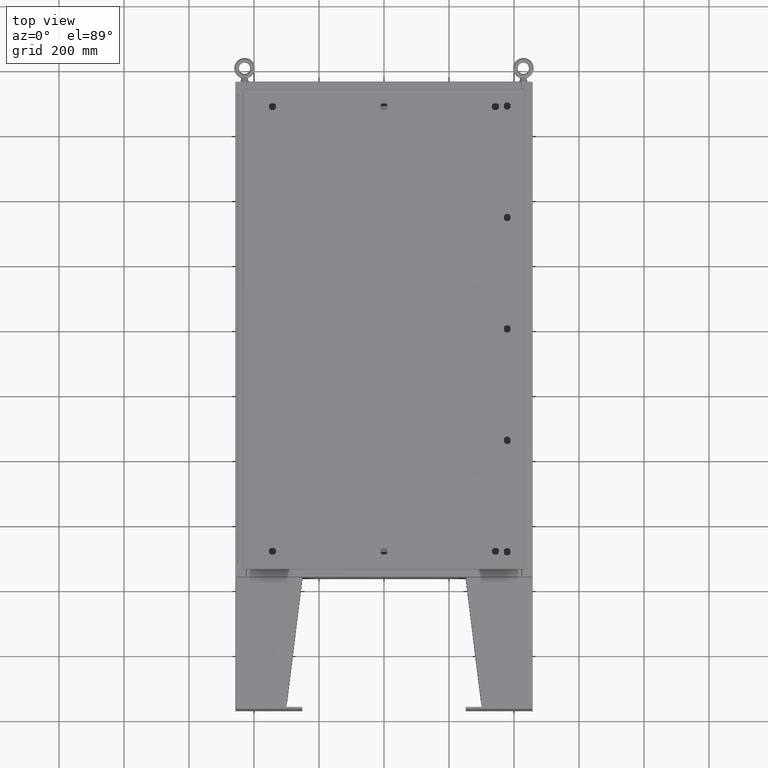
[diagram: clean part render]
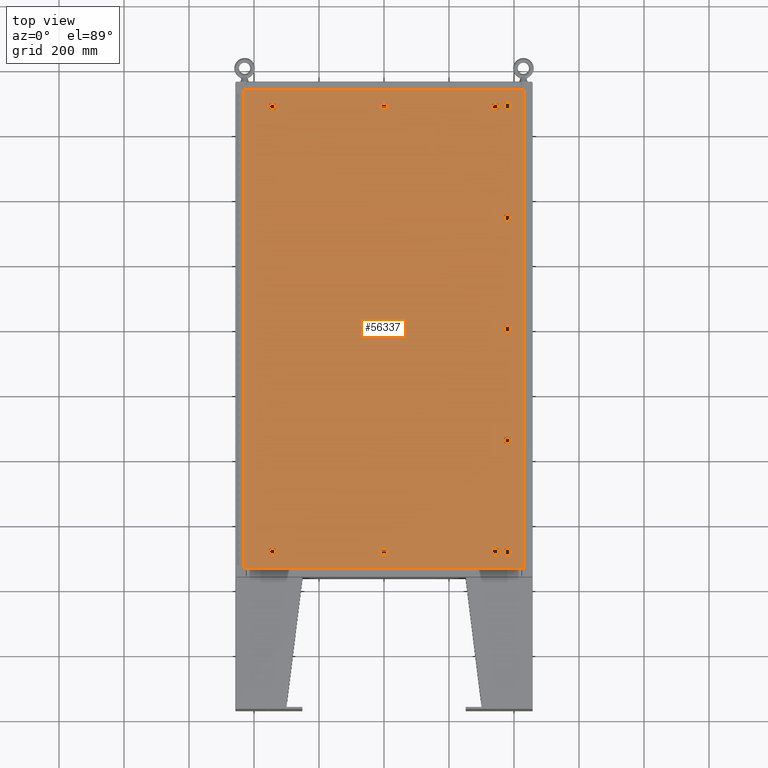
[diagram: same view with one face highlighted and labeled with its STEP entity id]
A machine part, top view. The second image highlights one B-rep face of the part: STEP entity #56337.
In plain terms, the highlighted planar face has unit normal (0, 0, -1).
Its self-contained STEP definition (entity closure, byte-faithful):
#100 = CIRCLE ( 'NONE', #61415, 0.4424999999999983400 ) ;
#177 = LINE ( 'NONE', #4350, #61389 ) ;
#438 = VERTEX_POINT ( 'NONE', #36956 ) ;
#645 = VECTOR ( 'NONE', #4768, 39.37007874015748100 ) ;
#780 = ORIENTED_EDGE ( 'NONE', *, *, #30802, .F. ) ;
#871 = DIRECTION ( 'NONE',  ( 0.0000000000000000000, -1.000000000000000000, 0.0000000000000000000 ) ) ;
#1169 = ORIENTED_EDGE ( 'NONE', *, *, #55194, .F. ) ;
#1293 = CARTESIAN_POINT ( 'NONE',  ( -13.69945237526786700, -27.33930000000000500, 0.0000000000000000000 ) ) ;
#1322 = EDGE_CURVE ( 'NONE', #27923, #15165, #3598, .T. ) ;
#1470 = EDGE_CURVE ( 'NONE', #8655, #46688, #53153, .T. ) ;
#1485 = FACE_BOUND ( 'NONE', #56544, .T. ) ;
#2029 = CARTESIAN_POINT ( 'NONE',  ( -0.1994523752678657400, 27.33929999999999100, 0.0000000000000000000 ) ) ;
#2033 = VECTOR ( 'NONE', #18959, 39.37007874015748100 ) ;
#2074 = DIRECTION ( 'NONE',  ( 1.000000000000000000, 1.095739467627832000E-014, 7.785697190085955000E-029 ) ) ;
#2168 = CARTESIAN_POINT ( 'NONE',  ( -0.1994523752678689600, 26.54929999999999900, 0.0000000000000000000 ) ) ;
#2210 = EDGE_CURVE ( 'NONE', #20897, #24893, #42932, .T. ) ;
#2417 = VERTEX_POINT ( 'NONE', #50197 ) ;
#2532 = CARTESIAN_POINT ( 'NONE',  ( -13.69945237526786900, -26.54930000000001300, -2.493734682567286400E-013 ) ) ;
#2623 = CARTESIAN_POINT ( 'NONE',  ( 14.92830000000001400, 27.00000000000001400, 0.0000000000000000000 ) ) ;
#2781 = CARTESIAN_POINT ( 'NONE',  ( 13.30054762473209500, -27.33929999999999400, -1.620127811158077400E-013 ) ) ;
#2799 = CIRCLE ( 'NONE', #58041, 0.4424999999999969000 ) ;
#2832 = DIRECTION ( 'NONE',  ( 0.0000000000000000000, 0.0000000000000000000, 1.000000000000000000 ) ) ;
#2834 = ORIENTED_EDGE ( 'NONE', *, *, #25305, .F. ) ;
#2923 = VERTEX_POINT ( 'NONE', #14451 ) ;
#2996 = FACE_BOUND ( 'NONE', #57729, .T. ) ;
#3210 = ORIENTED_EDGE ( 'NONE', *, *, #61022, .F. ) ;
#3400 = ORIENTED_EDGE ( 'NONE', *, *, #5374, .F. ) ;
#3418 = VECTOR ( 'NONE', #23327, 39.37007874015748100 ) ;
#3460 = ORIENTED_EDGE ( 'NONE', *, *, #53196, .F. ) ;
#3489 = ORIENTED_EDGE ( 'NONE', *, *, #7373, .F. ) ;
#3598 = CIRCLE ( 'NONE', #17120, 0.4424999999999961700 ) ;
#3670 = CARTESIAN_POINT ( 'NONE',  ( 16.99030000000000500, 29.00630000000000300, 1.946441695485787500E-015 ) ) ;
#3677 = DIRECTION ( 'NONE',  ( 0.0000000000000000000, 0.0000000000000000000, 1.000000000000000000 ) ) ;
#3820 = DIRECTION ( 'NONE',  ( -1.095739467627836100E-014, -1.000000000000000000, 0.0000000000000000000 ) ) ;
#4019 = CARTESIAN_POINT ( 'NONE',  ( 15.32330000000001000, 13.69945237526790100, 0.0000000000000000000 ) ) ;
#4088 = VERTEX_POINT ( 'NONE', #42199 ) ;
#4350 = CARTESIAN_POINT ( 'NONE',  ( 14.53330000000002700, -27.19945237526790300, -1.899327607900008200E-013 ) ) ;
#4382 = EDGE_CURVE ( 'NONE', #15165, #47140, #31452, .T. ) ;
#4534 = VECTOR ( 'NONE', #18728, 39.37007874015748100 ) ;
#4548 = CARTESIAN_POINT ( 'NONE',  ( 13.69945237526786900, 27.33929999999999100, 0.0000000000000000000 ) ) ;
#4556 = DIRECTION ( 'NONE',  ( -5.478697338139235000E-015, 1.000000000000000000, -0.0000000000000000000 ) ) ;
#4636 = EDGE_LOOP ( 'NONE', ( #3210, #32504, #5522, #35628 ) ) ;
#4768 = DIRECTION ( 'NONE',  ( -1.000000000000000000, -0.0000000000000000000, -6.982962677686265900E-015 ) ) ;
#5200 = CARTESIAN_POINT ( 'NONE',  ( -13.30054762473210200, -26.54930000000001300, -2.493734682567286900E-013 ) ) ;
#5361 = CARTESIAN_POINT ( 'NONE',  ( 14.92830000000001400, 27.00000000000001400, 0.0000000000000000000 ) ) ;
#5374 = EDGE_CURVE ( 'NONE', #26541, #57162, #50456, .T. ) ;
#5522 = ORIENTED_EDGE ( 'NONE', *, *, #41123, .F. ) ;
#5757 = EDGE_LOOP ( 'NONE', ( #23945, #33478, #7569, #19877 ) ) ;
#6111 = CARTESIAN_POINT ( 'NONE',  ( 13.30054762473209500, 27.33929999999998700, -9.287722765629296100E-014 ) ) ;
#6284 = EDGE_CURVE ( 'NONE', #32038, #34408, #6603, .T. ) ;
#6287 = DIRECTION ( 'NONE',  ( 0.0000000000000000000, 0.0000000000000000000, 1.000000000000000000 ) ) ;
#6603 = CIRCLE ( 'NONE', #23785, 0.4424999999999983400 ) ;
#6738 = DIRECTION ( 'NONE',  ( -6.982962677686266700E-015, -6.982962677686266700E-015, 1.000000000000000000 ) ) ;
#6745 = VECTOR ( 'NONE', #61131, 39.37007874015748100 ) ;
#6907 = EDGE_CURVE ( 'NONE', #55933, #2923, #14789, .T. ) ;
#6934 = VECTOR ( 'NONE', #28177, 39.37007874015748100 ) ;
#6949 = CARTESIAN_POINT ( 'NONE',  ( 13.49999999999998600, -26.94430000000000200, -1.578617423656501800E-013 ) ) ;
#6965 = DIRECTION ( 'NONE',  ( -0.0000000000000000000, -6.982962677686266700E-015, 1.000000000000000000 ) ) ;
#7297 = CARTESIAN_POINT ( 'NONE',  ( 13.30054762473210400, -26.54930000000000600, -1.564962406004356200E-013 ) ) ;
#7354 = ORIENTED_EDGE ( 'NONE', *, *, #33715, .F. ) ;
#7373 = EDGE_CURVE ( 'NONE', #27929, #54880, #41875, .T. ) ;
#7398 = CIRCLE ( 'NONE', #32411, 0.4424999999999983400 ) ;
#7510 = VERTEX_POINT ( 'NONE', #2029 ) ;
#7569 = ORIENTED_EDGE ( 'NONE', *, *, #39891, .T. ) ;
#7900 = EDGE_CURVE ( 'NONE', #57162, #31856, #16173, .T. ) ;
#7998 = VECTOR ( 'NONE', #59739, 39.37007874015748100 ) ;
#8280 = ORIENTED_EDGE ( 'NONE', *, *, #44750, .F. ) ;
#8655 = VERTEX_POINT ( 'NONE', #55554 ) ;
#8670 = CIRCLE ( 'NONE', #24077, 0.4424999999999983400 ) ;
#8732 = CIRCLE ( 'NONE', #13384, 0.4424999999999983400 ) ;
#8816 = AXIS2_PLACEMENT_3D ( 'NONE', #20107, #58757, #54064 ) ;
#8835 = ORIENTED_EDGE ( 'NONE', *, *, #14436, .F. ) ;
#8989 = ORIENTED_EDGE ( 'NONE', *, *, #43302, .F. ) ;
#9700 = EDGE_CURVE ( 'NONE', #53467, #48352, #33662, .T. ) ;
#9976 = CARTESIAN_POINT ( 'NONE',  ( -13.30054762473210200, -26.54930000000001300, -2.493734682567286900E-013 ) ) ;
#10014 = ORIENTED_EDGE ( 'NONE', *, *, #21000, .F. ) ;
#10137 = DIRECTION ( 'NONE',  ( 1.000000000000000000, 0.0000000000000000000, 0.0000000000000000000 ) ) ;
#10307 = AXIS2_PLACEMENT_3D ( 'NONE', #6949, #6738, #10333 ) ;
#10333 = DIRECTION ( 'NONE',  ( 1.000000000000000000, 0.0000000000000000000, 6.982962677686270700E-015 ) ) ;
#10358 = DIRECTION ( 'NONE',  ( -0.0000000000000000000, -6.982962677686266700E-015, 1.000000000000000000 ) ) ;
#10453 = CARTESIAN_POINT ( 'NONE',  ( 0.1994523752679054600, 27.33929999999998700, 0.0000000000000000000 ) ) ;
#10631 = CARTESIAN_POINT ( 'NONE',  ( 13.30054762473209500, -27.33929999999999400, -1.620127811158077400E-013 ) ) ;
#11287 = ORIENTED_EDGE ( 'NONE', *, *, #2210, .F. ) ;
#11372 = ORIENTED_EDGE ( 'NONE', *, *, #27663, .F. ) ;
#11411 = AXIS2_PLACEMENT_3D ( 'NONE', #20757, #2832, #40339 ) ;
#11419 = DIRECTION ( 'NONE',  ( 6.982962677686266700E-015, -0.0000000000000000000, 1.000000000000000000 ) ) ;
#11496 = DIRECTION ( 'NONE',  ( 5.478697338139280000E-015, 1.000000000000000000, 6.982962677686382700E-015 ) ) ;
#11519 = CARTESIAN_POINT ( 'NONE',  ( 15.32330000000001600, -13.30054762473213300, -9.287722765629316300E-014 ) ) ;
#11555 = CARTESIAN_POINT ( 'NONE',  ( -16.99029999999999800, -29.00630000000000300, 1.946441695485787500E-015 ) ) ;
#11563 = CARTESIAN_POINT ( 'NONE',  ( 14.92830000000002000, -27.00000000000001400, -1.885399922975292500E-013 ) ) ;
#11954 = VECTOR ( 'NONE', #60035, 39.37007874015748100 ) ;
#11993 = VERTEX_POINT ( 'NONE', #51020 ) ;
#12222 = CIRCLE ( 'NONE', #21260, 0.4424999999999961700 ) ;
#12238 = CARTESIAN_POINT ( 'NONE',  ( 14.53330000000001800, -0.1994523752678671000, 0.0000000000000000000 ) ) ;
#12311 = LINE ( 'NONE', #9976, #62345 ) ;
#12389 = EDGE_CURVE ( 'NONE', #52976, #40144, #177, .T. ) ;
#12462 = DIRECTION ( 'NONE',  ( -6.982962677686266700E-015, -6.982962677686266700E-015, 1.000000000000000000 ) ) ;
#12680 = VECTOR ( 'NONE', #2074, 39.37007874015748100 ) ;
#12822 = CARTESIAN_POINT ( 'NONE',  ( 14.53330000000002400, 13.69945237526790600, 0.0000000000000000000 ) ) ;
#12837 = CIRCLE ( 'NONE', #54951, 0.4424999999999983400 ) ;
#12853 = EDGE_CURVE ( 'NONE', #37382, #26541, #20754, .T. ) ;
#12930 = VECTOR ( 'NONE', #44375, 39.37007874015748100 ) ;
#13006 = EDGE_LOOP ( 'NONE', ( #41716, #43517, #18574, #8989, #8280 ) ) ;
#13076 = CARTESIAN_POINT ( 'NONE',  ( -13.30054762473209400, 27.33929999999998700, 0.0000000000000000000 ) ) ;
#13127 = EDGE_CURVE ( 'NONE', #46688, #39724, #47285, .T. ) ;
#13156 = CIRCLE ( 'NONE', #14222, 0.4424999999999972800 ) ;
#13235 = CARTESIAN_POINT ( 'NONE',  ( -13.05749999999998900, -26.94430000000000500, -2.521317385144146900E-013 ) ) ;
#13384 = AXIS2_PLACEMENT_3D ( 'NONE', #44260, #15367, #49195 ) ;
#13406 = LINE ( 'NONE', #62674, #645 ) ;
#14222 = AXIS2_PLACEMENT_3D ( 'NONE', #28589, #62567, #33502 ) ;
#14241 = FACE_BOUND ( 'NONE', #56264, .T. ) ;
#14436 = EDGE_CURVE ( 'NONE', #31856, #49313, #53194, .T. ) ;
#14451 = CARTESIAN_POINT ( 'NONE',  ( 0.1994523752678995500, 26.54929999999999900, 0.0000000000000000000 ) ) ;
#14789 = LINE ( 'NONE', #54120, #2033 ) ;
#15091 = DIRECTION ( 'NONE',  ( -0.0000000000000000000, -6.982962677686266700E-015, 1.000000000000000000 ) ) ;
#15165 = VERTEX_POINT ( 'NONE', #56644 ) ;
#15284 = DIRECTION ( 'NONE',  ( 0.0000000000000000000, 0.0000000000000000000, 1.000000000000000000 ) ) ;
#15316 = PLANE ( 'NONE',  #8816 ) ;
#15367 = DIRECTION ( 'NONE',  ( 0.0000000000000000000, 0.0000000000000000000, 1.000000000000000000 ) ) ;
#15604 = CARTESIAN_POINT ( 'NONE',  ( -0.1994523752678657400, -27.33929999999999400, 0.0000000000000000000 ) ) ;
#15669 = ORIENTED_EDGE ( 'NONE', *, *, #16581, .F. ) ;
#15714 = ORIENTED_EDGE ( 'NONE', *, *, #33228, .F. ) ;
#15737 = FACE_BOUND ( 'NONE', #53339, .T. ) ;
#15883 = ORIENTED_EDGE ( 'NONE', *, *, #32106, .F. ) ;
#15917 = CARTESIAN_POINT ( 'NONE',  ( -13.30054762473210200, 26.54929999999999900, 0.0000000000000000000 ) ) ;
#16100 = AXIS2_PLACEMENT_3D ( 'NONE', #35837, #6965, #40620 ) ;
#16173 = LINE ( 'NONE', #6111, #3418 ) ;
#16391 = DIRECTION ( 'NONE',  ( 0.0000000000000000000, 1.000000000000000000, 6.982962677686270700E-015 ) ) ;
#16433 = DIRECTION ( 'NONE',  ( -6.982962677686266700E-015, -6.982962677686266700E-015, 1.000000000000000000 ) ) ;
#16581 = EDGE_CURVE ( 'NONE', #24002, #20897, #57106, .T. ) ;
#16985 = ORIENTED_EDGE ( 'NONE', *, *, #37337, .F. ) ;
#17120 = AXIS2_PLACEMENT_3D ( 'NONE', #2623, #31435, #62618 ) ;
#17253 = FACE_BOUND ( 'NONE', #4636, .T. ) ;
#17274 = CARTESIAN_POINT ( 'NONE',  ( 15.32330000000001000, 0.1994523752679009100, 0.0000000000000000000 ) ) ;
#17604 = VECTOR ( 'NONE', #18481, 39.37007874015748100 ) ;
#17677 = EDGE_CURVE ( 'NONE', #44570, #28538, #32660, .T. ) ;
#17867 = CARTESIAN_POINT ( 'NONE',  ( 1.529834876451987200E-014, -26.94429999999999100, -2.521317385144146900E-013 ) ) ;
#17874 = VERTEX_POINT ( 'NONE', #38485 ) ;
#17928 = LINE ( 'NONE', #18583, #53546 ) ;
#18124 = DIRECTION ( 'NONE',  ( -1.000000000000000000, -0.0000000000000000000, -0.0000000000000000000 ) ) ;
#18481 = DIRECTION ( 'NONE',  ( -1.000000000000000000, 1.095739467627832000E-014, 0.0000000000000000000 ) ) ;
#18574 = ORIENTED_EDGE ( 'NONE', *, *, #30524, .F. ) ;
#18583 = CARTESIAN_POINT ( 'NONE',  ( 15.32330000000001000, 0.1994523752679009100, 0.0000000000000000000 ) ) ;
#18595 = CARTESIAN_POINT ( 'NONE',  ( -13.30054762473210200, 26.54929999999999900, 0.0000000000000000000 ) ) ;
#18599 = VECTOR ( 'NONE', #33578, 39.37007874015748100 ) ;
#18728 = DIRECTION ( 'NONE',  ( 5.478697338139220100E-015, 1.000000000000000000, 6.982962677686228100E-015 ) ) ;
#18757 = FACE_BOUND ( 'NONE', #51273, .T. ) ;
#18959 = DIRECTION ( 'NONE',  ( 1.000000000000000000, -0.0000000000000000000, -0.0000000000000000000 ) ) ;
#19252 = CARTESIAN_POINT ( 'NONE',  ( 13.49999999999998600, 26.94429999999999100, -9.426999614876453700E-014 ) ) ;
#19349 = AXIS2_PLACEMENT_3D ( 'NONE', #44185, #15284, #49098 ) ;
#19648 = LINE ( 'NONE', #4019, #6934 ) ;
#19681 = VERTEX_POINT ( 'NONE', #1293 ) ;
#19877 = ORIENTED_EDGE ( 'NONE', *, *, #61915, .T. ) ;
#20085 = DIRECTION ( 'NONE',  ( -0.0000000000000000000, -6.982962677686266700E-015, 1.000000000000000000 ) ) ;
#20107 = CARTESIAN_POINT ( 'NONE',  ( 0.0000000000000000000, 0.0000000000000000000, 0.0000000000000000000 ) ) ;
#20113 = VERTEX_POINT ( 'NONE', #23417 ) ;
#20218 = ORIENTED_EDGE ( 'NONE', *, *, #12389, .F. ) ;
#20343 = DIRECTION ( 'NONE',  ( 0.0000000000000000000, 1.000000000000000000, 6.982962677686270700E-015 ) ) ;
#20516 = EDGE_LOOP ( 'NONE', ( #56898, #53623, #27391, #62195, #2834 ) ) ;
#20754 = CIRCLE ( 'NONE', #31402, 0.4424999999999983400 ) ;
#20757 = CARTESIAN_POINT ( 'NONE',  ( -13.49999999999998600, 26.94429999999999100, 0.0000000000000000000 ) ) ;
#20888 = CARTESIAN_POINT ( 'NONE',  ( 15.32330000000001200, -13.69945237526790100, -9.566276464123617700E-014 ) ) ;
#20897 = VERTEX_POINT ( 'NONE', #20888 ) ;
#21000 = EDGE_CURVE ( 'NONE', #25159, #24559, #23371, .T. ) ;
#21216 = EDGE_CURVE ( 'NONE', #47140, #39592, #25595, .T. ) ;
#21260 = AXIS2_PLACEMENT_3D ( 'NONE', #41431, #59127, #51587 ) ;
#21444 = CIRCLE ( 'NONE', #60899, 0.4424999999999961700 ) ;
#22385 = AXIS2_PLACEMENT_3D ( 'NONE', #52756, #23740, #57692 ) ;
#22485 = VECTOR ( 'NONE', #871, 39.37007874015748100 ) ;
#22559 = ORIENTED_EDGE ( 'NONE', *, *, #48786, .F. ) ;
#22678 = VECTOR ( 'NONE', #42322, 39.37007874015748100 ) ;
#22691 = DIRECTION ( 'NONE',  ( 0.0000000000000000000, 1.000000000000000000, 6.982962677686270700E-015 ) ) ;
#22811 = CARTESIAN_POINT ( 'NONE',  ( 14.53330000000002400, 13.69945237526790600, 0.0000000000000000000 ) ) ;
#22875 = VERTEX_POINT ( 'NONE', #2532 ) ;
#23021 = VECTOR ( 'NONE', #35571, 39.37007874015748100 ) ;
#23259 = EDGE_CURVE ( 'NONE', #47215, #30384, #12222, .T. ) ;
#23327 = DIRECTION ( 'NONE',  ( -1.000000000000000000, -1.095739467627832000E-014, 6.982962677686228800E-015 ) ) ;
#23343 = CARTESIAN_POINT ( 'NONE',  ( 13.69945237526787100, -26.54930000000000600, 0.0000000000000000000 ) ) ;
#23371 = CIRCLE ( 'NONE', #10307, 0.4424999999999983400 ) ;
#23417 = CARTESIAN_POINT ( 'NONE',  ( 14.53330000000002400, 0.1994523752679062100, 0.0000000000000000000 ) ) ;
#23740 = DIRECTION ( 'NONE',  ( -0.0000000000000000000, -6.982962677686266700E-015, 1.000000000000000000 ) ) ;
#23781 = CARTESIAN_POINT ( 'NONE',  ( 0.1994523752679054600, -27.33929999999998700, -2.548900087721007400E-013 ) ) ;
#23785 = AXIS2_PLACEMENT_3D ( 'NONE', #58026, #33626, #31978 ) ;
#23910 = CIRCLE ( 'NONE', #55700, 0.4424999999999983400 ) ;
#23919 = CARTESIAN_POINT ( 'NONE',  ( 13.94249999999998500, -26.94430000000000200, -1.547717813807740000E-013 ) ) ;
#23927 = CARTESIAN_POINT ( 'NONE',  ( 14.53330000000002500, -13.69945237526790600, -9.566276464123621500E-014 ) ) ;
#23945 = ORIENTED_EDGE ( 'NONE', *, *, #48790, .T. ) ;
#24002 = VERTEX_POINT ( 'NONE', #62264 ) ;
#24018 = LINE ( 'NONE', #39147, #22485 ) ;
#24077 = AXIS2_PLACEMENT_3D ( 'NONE', #11563, #45334, #16391 ) ;
#24204 = ORIENTED_EDGE ( 'NONE', *, *, #55175, .F. ) ;
#24231 = LINE ( 'NONE', #22811, #61401 ) ;
#24314 = DIRECTION ( 'NONE',  ( 6.982962677686266700E-015, -0.0000000000000000000, 1.000000000000000000 ) ) ;
#24495 = DIRECTION ( 'NONE',  ( 0.0000000000000000000, 1.000000000000000000, 6.982962677686269100E-015 ) ) ;
#24542 = DIRECTION ( 'NONE',  ( -0.0000000000000000000, -6.982962677686266700E-015, 1.000000000000000000 ) ) ;
#24559 = VERTEX_POINT ( 'NONE', #23343 ) ;
#24607 = CARTESIAN_POINT ( 'NONE',  ( 14.92830000000001600, -13.50000000000001800, -9.426999614876466400E-014 ) ) ;
#24827 = DIRECTION ( 'NONE',  ( -1.000000000000000000, 0.0000000000000000000, 6.982962677686235200E-015 ) ) ;
#24893 = VERTEX_POINT ( 'NONE', #11519 ) ;
#24942 = CARTESIAN_POINT ( 'NONE',  ( -13.49999999999998600, 26.94429999999999100, 0.0000000000000000000 ) ) ;
#24945 = VERTEX_POINT ( 'NONE', #35994 ) ;
#25118 = CARTESIAN_POINT ( 'NONE',  ( -16.99029999999999800, -29.00630000000000300, 1.946441695485787500E-015 ) ) ;
#25159 = VERTEX_POINT ( 'NONE', #23919 ) ;
#25305 = EDGE_CURVE ( 'NONE', #33142, #53467, #42925, .T. ) ;
#25504 = FACE_OUTER_BOUND ( 'NONE', #5757, .T. ) ;
#25595 = CIRCLE ( 'NONE', #52459, 0.4424999999999961700 ) ;
#25648 = EDGE_CURVE ( 'NONE', #41163, #8655, #48998, .T. ) ;
#26458 = CARTESIAN_POINT ( 'NONE',  ( 14.92830000000001600, -13.50000000000001800, -9.426999614876466400E-014 ) ) ;
#26541 = VERTEX_POINT ( 'NONE', #28917 ) ;
#26605 = CARTESIAN_POINT ( 'NONE',  ( 15.32330000000001000, 27.19945237526789600, 0.0000000000000000000 ) ) ;
#27032 = FACE_BOUND ( 'NONE', #54721, .T. ) ;
#27170 = CARTESIAN_POINT ( 'NONE',  ( 15.32330000000001200, 26.80054762473213300, 0.0000000000000000000 ) ) ;
#27192 = CARTESIAN_POINT ( 'NONE',  ( 15.32330000000001000, 27.19945237526789600, 0.0000000000000000000 ) ) ;
#27391 = ORIENTED_EDGE ( 'NONE', *, *, #36254, .F. ) ;
#27663 = EDGE_CURVE ( 'NONE', #54880, #47885, #53058, .T. ) ;
#27923 = VERTEX_POINT ( 'NONE', #26605 ) ;
#27929 = VERTEX_POINT ( 'NONE', #7297 ) ;
#28043 = DIRECTION ( 'NONE',  ( 6.982962677686266700E-015, -0.0000000000000000000, 1.000000000000000000 ) ) ;
#28177 = DIRECTION ( 'NONE',  ( -5.478697338139220100E-015, 1.000000000000000000, -0.0000000000000000000 ) ) ;
#28538 = VERTEX_POINT ( 'NONE', #35223 ) ;
#28589 = CARTESIAN_POINT ( 'NONE',  ( 1.529834876451987200E-014, 26.94429999999999100, 0.0000000000000000000 ) ) ;
#28832 = CARTESIAN_POINT ( 'NONE',  ( 14.53330000000002400, -26.80054762473213300, 0.0000000000000000000 ) ) ;
#28917 = CARTESIAN_POINT ( 'NONE',  ( 13.94249999999998500, 26.94429999999999100, -9.735995713364070100E-014 ) ) ;
#28936 = CARTESIAN_POINT ( 'NONE',  ( 13.69945237526787100, 26.54929999999999900, -9.566276464123603800E-014 ) ) ;
#29193 = DIRECTION ( 'NONE',  ( -1.000000000000000000, 0.0000000000000000000, 6.982962677686269100E-015 ) ) ;
#29259 = CARTESIAN_POINT ( 'NONE',  ( 0.4425000000000125500, 26.94429999999999100, 0.0000000000000000000 ) ) ;
#29859 = DIRECTION ( 'NONE',  ( 1.000000000000000000, 0.0000000000000000000, 0.0000000000000000000 ) ) ;
#30047 = ORIENTED_EDGE ( 'NONE', *, *, #6284, .F. ) ;
#30063 = AXIS2_PLACEMENT_3D ( 'NONE', #44451, #49394, #20343 ) ;
#30384 = VERTEX_POINT ( 'NONE', #36484 ) ;
#30524 = EDGE_CURVE ( 'NONE', #56366, #7510, #35575, .T. ) ;
#30680 = CARTESIAN_POINT ( 'NONE',  ( 16.99030000000000500, -29.00630000000000000, -2.048885995248197400E-016 ) ) ;
#30682 = CARTESIAN_POINT ( 'NONE',  ( 13.30054762473210400, 26.54929999999999900, -9.287722765629301200E-014 ) ) ;
#30802 = EDGE_CURVE ( 'NONE', #17874, #11993, #46136, .T. ) ;
#30845 = LINE ( 'NONE', #27192, #6745 ) ;
#30870 = ORIENTED_EDGE ( 'NONE', *, *, #46118, .F. ) ;
#30889 = CARTESIAN_POINT ( 'NONE',  ( -13.30054762473209400, -27.33930000000000100, -2.548900087721007400E-013 ) ) ;
#31118 = DIRECTION ( 'NONE',  ( -1.000000000000000000, 0.0000000000000000000, 7.785697190086061500E-029 ) ) ;
#31244 = ORIENTED_EDGE ( 'NONE', *, *, #60269, .F. ) ;
#31334 = CARTESIAN_POINT ( 'NONE',  ( 0.1994523752678995500, -26.54929999999999900, -2.493734682567286900E-013 ) ) ;
#31375 = DIRECTION ( 'NONE',  ( 0.0000000000000000000, 1.000000000000000000, 6.982962677686270700E-015 ) ) ;
#31402 = AXIS2_PLACEMENT_3D ( 'NONE', #59244, #11419, #24827 ) ;
#31435 = DIRECTION ( 'NONE',  ( 0.0000000000000000000, 0.0000000000000000000, 1.000000000000000000 ) ) ;
#31452 = LINE ( 'NONE', #46604, #18599 ) ;
#31856 = VERTEX_POINT ( 'NONE', #54387 ) ;
#31952 = LINE ( 'NONE', #42537, #17604 ) ;
#31978 = DIRECTION ( 'NONE',  ( 1.000000000000000000, 0.0000000000000000000, 0.0000000000000000000 ) ) ;
#32038 = VERTEX_POINT ( 'NONE', #12238 ) ;
#32106 = EDGE_CURVE ( 'NONE', #39592, #27923, #30845, .T. ) ;
#32114 = LINE ( 'NONE', #30680, #7998 ) ;
#32336 = AXIS2_PLACEMENT_3D ( 'NONE', #39229, #10358, #44127 ) ;
#32411 = AXIS2_PLACEMENT_3D ( 'NONE', #17867, #51710, #22691 ) ;
#32504 = ORIENTED_EDGE ( 'NONE', *, *, #17677, .F. ) ;
#32506 = CARTESIAN_POINT ( 'NONE',  ( 14.92830000000001400, 13.50000000000001800, 0.0000000000000000000 ) ) ;
#32660 = CIRCLE ( 'NONE', #38856, 0.4424999999999983400 ) ;
#33142 = VERTEX_POINT ( 'NONE', #15917 ) ;
#33228 = EDGE_CURVE ( 'NONE', #19681, #4088, #51227, .T. ) ;
#33291 = VECTOR ( 'NONE', #11496, 39.37007874015748100 ) ;
#33440 = VERTEX_POINT ( 'NONE', #56538 ) ;
#33478 = ORIENTED_EDGE ( 'NONE', *, *, #38723, .T. ) ;
#33502 = DIRECTION ( 'NONE',  ( 1.000000000000000000, 0.0000000000000000000, 0.0000000000000000000 ) ) ;
#33539 = EDGE_CURVE ( 'NONE', #30384, #33142, #60382, .T. ) ;
#33578 = DIRECTION ( 'NONE',  ( -1.095739467627844000E-014, -1.000000000000000000, 0.0000000000000000000 ) ) ;
#33626 = DIRECTION ( 'NONE',  ( 0.0000000000000000000, 0.0000000000000000000, 1.000000000000000000 ) ) ;
#33662 = CIRCLE ( 'NONE', #11411, 0.4424999999999983400 ) ;
#33715 = EDGE_CURVE ( 'NONE', #22875, #19681, #38278, .T. ) ;
#34331 = LINE ( 'NONE', #23927, #47195 ) ;
#34408 = VERTEX_POINT ( 'NONE', #53182 ) ;
#34599 = EDGE_CURVE ( 'NONE', #7510, #55933, #2799, .T. ) ;
#35151 = CARTESIAN_POINT ( 'NONE',  ( 1.529834876451987200E-014, 26.94429999999999100, 0.0000000000000000000 ) ) ;
#35223 = CARTESIAN_POINT ( 'NONE',  ( 15.32330000000001200, 13.30054762473213300, 0.0000000000000000000 ) ) ;
#35451 = EDGE_CURVE ( 'NONE', #2417, #62617, #21444, .T. ) ;
#35571 = DIRECTION ( 'NONE',  ( 1.000000000000000000, 1.095739467627836100E-014, 7.785697190085984100E-029 ) ) ;
#35575 = LINE ( 'NONE', #47275, #22678 ) ;
#35628 = ORIENTED_EDGE ( 'NONE', *, *, #35451, .F. ) ;
#35832 = CARTESIAN_POINT ( 'NONE',  ( 0.4425000000000125500, -26.94429999999999100, -2.521317385144146900E-013 ) ) ;
#35837 = CARTESIAN_POINT ( 'NONE',  ( 14.92830000000002000, -27.00000000000001400, -1.885399922975292500E-013 ) ) ;
#35994 = CARTESIAN_POINT ( 'NONE',  ( -16.99029999999998400, 29.00630000000000000, 4.166068190338001500E-015 ) ) ;
#36030 = LINE ( 'NONE', #42096, #45857 ) ;
#36104 = VECTOR ( 'NONE', #31118, 39.37007874015748100 ) ;
#36169 = VERTEX_POINT ( 'NONE', #13235 ) ;
#36254 = EDGE_CURVE ( 'NONE', #48352, #47215, #31952, .T. ) ;
#36484 = CARTESIAN_POINT ( 'NONE',  ( -13.69945237526786900, 26.54929999999999900, 0.0000000000000000000 ) ) ;
#36537 = CIRCLE ( 'NONE', #52770, 0.4424999999999983400 ) ;
#36956 = CARTESIAN_POINT ( 'NONE',  ( 14.53330000000002000, -13.30054762473213400, 0.0000000000000000000 ) ) ;
#37337 = EDGE_CURVE ( 'NONE', #34408, #37698, #17928, .T. ) ;
#37344 = DIRECTION ( 'NONE',  ( 1.000000000000000000, 0.0000000000000000000, 0.0000000000000000000 ) ) ;
#37362 = EDGE_CURVE ( 'NONE', #24559, #27929, #13406, .T. ) ;
#37382 = VERTEX_POINT ( 'NONE', #28936 ) ;
#37592 = EDGE_CURVE ( 'NONE', #47885, #25159, #23910, .T. ) ;
#37698 = VERTEX_POINT ( 'NONE', #17274 ) ;
#38243 = ORIENTED_EDGE ( 'NONE', *, *, #44300, .F. ) ;
#38278 = CIRCLE ( 'NONE', #32336, 0.4424999999999983400 ) ;
#38377 = FACE_BOUND ( 'NONE', #13006, .T. ) ;
#38485 = CARTESIAN_POINT ( 'NONE',  ( 15.32330000000001600, -27.19945237526789600, -1.899327607900007900E-013 ) ) ;
#38487 = ORIENTED_EDGE ( 'NONE', *, *, #44778, .F. ) ;
#38723 = EDGE_CURVE ( 'NONE', #33440, #51717, #32114, .T. ) ;
#38750 = AXIS2_PLACEMENT_3D ( 'NONE', #24942, #58912, #29859 ) ;
#38856 = AXIS2_PLACEMENT_3D ( 'NONE', #47743, #48065, #48073 ) ;
#38857 = DIRECTION ( 'NONE',  ( -1.000000000000000000, 0.0000000000000000000, 7.785697190086082800E-029 ) ) ;
#38988 = DIRECTION ( 'NONE',  ( 0.0000000000000000000, 0.0000000000000000000, 1.000000000000000000 ) ) ;
#39099 = LINE ( 'NONE', #11555, #11954 ) ;
#39147 = CARTESIAN_POINT ( 'NONE',  ( -16.99029999999998400, 29.00630000000000000, 4.166068190338001500E-015 ) ) ;
#39229 = CARTESIAN_POINT ( 'NONE',  ( -13.49999999999998600, -26.94430000000000500, -2.521317385144146900E-013 ) ) ;
#39404 = LINE ( 'NONE', #56435, #49320 ) ;
#39546 = CARTESIAN_POINT ( 'NONE',  ( -13.69945237526786700, 27.33929999999999100, 0.0000000000000000000 ) ) ;
#39592 = VERTEX_POINT ( 'NONE', #27170 ) ;
#39643 = CARTESIAN_POINT ( 'NONE',  ( 15.32330000000001200, -13.69945237526790100, -9.566276464123617700E-014 ) ) ;
#39724 = VERTEX_POINT ( 'NONE', #23781 ) ;
#39891 = EDGE_CURVE ( 'NONE', #51717, #24945, #55540, .T. ) ;
#39917 = DIRECTION ( 'NONE',  ( 1.000000000000000000, 0.0000000000000000000, 0.0000000000000000000 ) ) ;
#40144 = VERTEX_POINT ( 'NONE', #44068 ) ;
#40339 = DIRECTION ( 'NONE',  ( 1.000000000000000000, 0.0000000000000000000, 0.0000000000000000000 ) ) ;
#40372 = CARTESIAN_POINT ( 'NONE',  ( 15.32330000000001600, -27.19945237526789600, -1.899327607900007900E-013 ) ) ;
#40415 = AXIS2_PLACEMENT_3D ( 'NONE', #24607, #24542, #24495 ) ;
#40620 = DIRECTION ( 'NONE',  ( 0.0000000000000000000, 1.000000000000000000, 6.982962677686270700E-015 ) ) ;
#40805 = ORIENTED_EDGE ( 'NONE', *, *, #55068, .F. ) ;
#40997 = VECTOR ( 'NONE', #18124, 39.37007874015748100 ) ;
#41123 = EDGE_CURVE ( 'NONE', #62617, #44570, #24231, .T. ) ;
#41163 = VERTEX_POINT ( 'NONE', #52242 ) ;
#41431 = CARTESIAN_POINT ( 'NONE',  ( -13.49999999999998600, 26.94429999999999100, 0.0000000000000000000 ) ) ;
#41716 = ORIENTED_EDGE ( 'NONE', *, *, #6907, .F. ) ;
#41795 = ORIENTED_EDGE ( 'NONE', *, *, #58557, .F. ) ;
#41875 = CIRCLE ( 'NONE', #59192, 0.4424999999999961700 ) ;
#41907 = DIRECTION ( 'NONE',  ( 1.000000000000000000, 0.0000000000000000000, -6.982962677686306200E-015 ) ) ;
#42096 = CARTESIAN_POINT ( 'NONE',  ( 14.53330000000002400, 0.1994523752679053800, 0.0000000000000000000 ) ) ;
#42180 = ORIENTED_EDGE ( 'NONE', *, *, #1322, .F. ) ;
#42199 = CARTESIAN_POINT ( 'NONE',  ( -13.30054762473209400, -27.33930000000000100, -2.548900087721007400E-013 ) ) ;
#42322 = DIRECTION ( 'NONE',  ( -1.000000000000000000, 1.095739467627836100E-014, 0.0000000000000000000 ) ) ;
#42537 = CARTESIAN_POINT ( 'NONE',  ( -13.30054762473209400, 27.33929999999998700, 0.0000000000000000000 ) ) ;
#42626 = ORIENTED_EDGE ( 'NONE', *, *, #13127, .F. ) ;
#42674 = DIRECTION ( 'NONE',  ( -1.000000000000000000, 0.0000000000000000000, 6.982962677686235200E-015 ) ) ;
#42736 = CARTESIAN_POINT ( 'NONE',  ( 13.49999999999998600, -26.94430000000000200, -1.578617423656501800E-013 ) ) ;
#42925 = CIRCLE ( 'NONE', #38750, 0.4424999999999983400 ) ;
#42932 = LINE ( 'NONE', #39643, #4534 ) ;
#43092 = CARTESIAN_POINT ( 'NONE',  ( 13.69945237526786900, -27.33930000000000100, -1.592272441308647100E-013 ) ) ;
#43302 = EDGE_CURVE ( 'NONE', #60762, #56366, #45071, .T. ) ;
#43517 = ORIENTED_EDGE ( 'NONE', *, *, #34599, .F. ) ;
#43921 = ORIENTED_EDGE ( 'NONE', *, *, #12853, .F. ) ;
#43987 = CARTESIAN_POINT ( 'NONE',  ( -13.49999999999998600, -26.94430000000000500, -2.521317385144146900E-013 ) ) ;
#44068 = CARTESIAN_POINT ( 'NONE',  ( 14.53330000000002700, -27.19945237526790300, -1.899327607900007900E-013 ) ) ;
#44127 = DIRECTION ( 'NONE',  ( 0.0000000000000000000, 1.000000000000000000, 6.982962677686270700E-015 ) ) ;
#44185 = CARTESIAN_POINT ( 'NONE',  ( 1.529834876451987200E-014, 26.94429999999999100, 0.0000000000000000000 ) ) ;
#44260 = CARTESIAN_POINT ( 'NONE',  ( 14.92830000000001400, 1.529834876451990400E-014, 0.0000000000000000000 ) ) ;
#44300 = EDGE_CURVE ( 'NONE', #37698, #20113, #8732, .T. ) ;
#44375 = DIRECTION ( 'NONE',  ( 1.000000000000000000, -1.095739467627832000E-014, 6.982962677686152300E-015 ) ) ;
#44451 = CARTESIAN_POINT ( 'NONE',  ( 1.529834876451987200E-014, -26.94429999999999100, -2.521317385144146900E-013 ) ) ;
#44511 = EDGE_LOOP ( 'NONE', ( #47049, #10014, #45090, #11372, #3489 ) ) ;
#44570 = VERTEX_POINT ( 'NONE', #60876 ) ;
#44750 = EDGE_CURVE ( 'NONE', #2923, #60762, #13156, .T. ) ;
#44778 = EDGE_CURVE ( 'NONE', #438, #24002, #34331, .T. ) ;
#45071 = CIRCLE ( 'NONE', #19349, 0.4424999999999972800 ) ;
#45090 = ORIENTED_EDGE ( 'NONE', *, *, #37592, .F. ) ;
#45334 = DIRECTION ( 'NONE',  ( -0.0000000000000000000, -6.982962677686266700E-015, 1.000000000000000000 ) ) ;
#45369 = CARTESIAN_POINT ( 'NONE',  ( 13.49999999999998600, -26.94430000000000200, -1.578617423656501800E-013 ) ) ;
#45857 = VECTOR ( 'NONE', #3820, 39.37007874015748100 ) ;
#46102 = VERTEX_POINT ( 'NONE', #5200 ) ;
#46117 = CIRCLE ( 'NONE', #22385, 0.4424999999999983400 ) ;
#46118 = EDGE_CURVE ( 'NONE', #46102, #22875, #12311, .T. ) ;
#46136 = LINE ( 'NONE', #40372, #33291 ) ;
#46198 = VERTEX_POINT ( 'NONE', #25118 ) ;
#46604 = CARTESIAN_POINT ( 'NONE',  ( 14.53330000000002400, 27.19945237526790300, 0.0000000000000000000 ) ) ;
#46688 = VERTEX_POINT ( 'NONE', #15604 ) ;
#47049 = ORIENTED_EDGE ( 'NONE', *, *, #37362, .F. ) ;
#47140 = VERTEX_POINT ( 'NONE', #53633 ) ;
#47195 = VECTOR ( 'NONE', #52956, 39.37007874015748100 ) ;
#47215 = VERTEX_POINT ( 'NONE', #39546 ) ;
#47275 = CARTESIAN_POINT ( 'NONE',  ( 0.1994523752679067700, 27.33929999999998700, 0.0000000000000000000 ) ) ;
#47285 = LINE ( 'NONE', #50478, #23021 ) ;
#47437 = VECTOR ( 'NONE', #62272, 39.37007874015748100 ) ;
#47743 = CARTESIAN_POINT ( 'NONE',  ( 14.92830000000001400, 13.50000000000001800, 0.0000000000000000000 ) ) ;
#47885 = VERTEX_POINT ( 'NONE', #43092 ) ;
#48065 = DIRECTION ( 'NONE',  ( 0.0000000000000000000, 0.0000000000000000000, 1.000000000000000000 ) ) ;
#48073 = DIRECTION ( 'NONE',  ( 1.000000000000000000, 0.0000000000000000000, 0.0000000000000000000 ) ) ;
#48086 = AXIS2_PLACEMENT_3D ( 'NONE', #57148, #28043, #42674 ) ;
#48352 = VERTEX_POINT ( 'NONE', #13076 ) ;
#48697 = CARTESIAN_POINT ( 'NONE',  ( -13.05749999999998900, 26.94429999999999100, 0.0000000000000000000 ) ) ;
#48786 = EDGE_CURVE ( 'NONE', #11993, #52976, #50503, .T. ) ;
#48790 = EDGE_CURVE ( 'NONE', #46198, #33440, #39099, .T. ) ;
#48906 = DIRECTION ( 'NONE',  ( 0.0000000000000000000, 1.000000000000000000, 6.982962677686270700E-015 ) ) ;
#48998 = LINE ( 'NONE', #31334, #36104 ) ;
#49098 = DIRECTION ( 'NONE',  ( 1.000000000000000000, 0.0000000000000000000, 0.0000000000000000000 ) ) ;
#49118 = CARTESIAN_POINT ( 'NONE',  ( -13.49999999999998600, -26.94430000000000500, -2.521317385144146900E-013 ) ) ;
#49195 = DIRECTION ( 'NONE',  ( 1.000000000000000000, 0.0000000000000000000, 0.0000000000000000000 ) ) ;
#49313 = VERTEX_POINT ( 'NONE', #30682 ) ;
#49320 = VECTOR ( 'NONE', #41907, 39.37007874015748100 ) ;
#49394 = DIRECTION ( 'NONE',  ( -0.0000000000000000000, -6.982962677686266700E-015, 1.000000000000000000 ) ) ;
#50197 = CARTESIAN_POINT ( 'NONE',  ( 15.32330000000001000, 13.69945237526790100, 0.0000000000000000000 ) ) ;
#50270 = DIRECTION ( 'NONE',  ( 1.000000000000000000, 0.0000000000000000000, 6.982962677686270700E-015 ) ) ;
#50456 = CIRCLE ( 'NONE', #48086, 0.4424999999999983400 ) ;
#50478 = CARTESIAN_POINT ( 'NONE',  ( 0.1994523752679067700, -27.33929999999998700, -2.548900087721007400E-013 ) ) ;
#50503 = CIRCLE ( 'NONE', #16100, 0.4424999999999983400 ) ;
#51020 = CARTESIAN_POINT ( 'NONE',  ( 15.32330000000001700, -26.80054762473213300, -1.871472238050577400E-013 ) ) ;
#51227 = LINE ( 'NONE', #30889, #12680 ) ;
#51256 = FACE_BOUND ( 'NONE', #20516, .T. ) ;
#51269 = EDGE_CURVE ( 'NONE', #20113, #32038, #36030, .T. ) ;
#51273 = EDGE_LOOP ( 'NONE', ( #38487, #3460, #11287, #15669 ) ) ;
#51587 = DIRECTION ( 'NONE',  ( 1.000000000000000000, 0.0000000000000000000, 0.0000000000000000000 ) ) ;
#51710 = DIRECTION ( 'NONE',  ( -0.0000000000000000000, -6.982962677686266700E-015, 1.000000000000000000 ) ) ;
#51717 = VERTEX_POINT ( 'NONE', #55322 ) ;
#52242 = CARTESIAN_POINT ( 'NONE',  ( 0.1994523752678995500, -26.54929999999999900, -2.493734682567286900E-013 ) ) ;
#52459 = AXIS2_PLACEMENT_3D ( 'NONE', #5361, #38988, #10137 ) ;
#52507 = ORIENTED_EDGE ( 'NONE', *, *, #7900, .F. ) ;
#52756 = CARTESIAN_POINT ( 'NONE',  ( 1.529834876451987200E-014, -26.94429999999999100, -2.521317385144146900E-013 ) ) ;
#52770 = AXIS2_PLACEMENT_3D ( 'NONE', #26458, #60437, #31375 ) ;
#52834 = FACE_BOUND ( 'NONE', #61722, .T. ) ;
#52956 = DIRECTION ( 'NONE',  ( 1.095739467627838000E-014, -1.000000000000000000, -6.982962677686269100E-015 ) ) ;
#52976 = VERTEX_POINT ( 'NONE', #28832 ) ;
#53058 = LINE ( 'NONE', #10631, #12930 ) ;
#53136 = VERTEX_POINT ( 'NONE', #35832 ) ;
#53153 = CIRCLE ( 'NONE', #30063, 0.4424999999999983400 ) ;
#53182 = CARTESIAN_POINT ( 'NONE',  ( 15.32330000000001600, -0.1994523752678676000, 0.0000000000000000000 ) ) ;
#53194 = CIRCLE ( 'NONE', #53421, 0.4424999999999961700 ) ;
#53196 = EDGE_CURVE ( 'NONE', #24893, #438, #36537, .T. ) ;
#53339 = EDGE_LOOP ( 'NONE', ( #20218, #22559, #780, #41795 ) ) ;
#53421 = AXIS2_PLACEMENT_3D ( 'NONE', #19252, #24314, #29193 ) ;
#53467 = VERTEX_POINT ( 'NONE', #48697 ) ;
#53546 = VECTOR ( 'NONE', #4556, 39.37007874015748100 ) ;
#53623 = ORIENTED_EDGE ( 'NONE', *, *, #23259, .F. ) ;
#53633 = CARTESIAN_POINT ( 'NONE',  ( 14.53330000000001800, 26.80054762473213300, 0.0000000000000000000 ) ) ;
#54040 = DIRECTION ( 'NONE',  ( 0.0000000000000000000, 1.000000000000000000, 6.982962677686270700E-015 ) ) ;
#54064 = DIRECTION ( 'NONE',  ( -1.000000000000000000, 0.0000000000000000000, -0.0000000000000000000 ) ) ;
#54120 = CARTESIAN_POINT ( 'NONE',  ( 0.1994523752678995500, 26.54929999999999900, 0.0000000000000000000 ) ) ;
#54381 = FACE_BOUND ( 'NONE', #44511, .T. ) ;
#54387 = CARTESIAN_POINT ( 'NONE',  ( 13.30054762473209500, 27.33929999999998700, -9.287722765629298600E-014 ) ) ;
#54468 = ORIENTED_EDGE ( 'NONE', *, *, #51269, .F. ) ;
#54499 = DIRECTION ( 'NONE',  ( 1.095739467627844000E-014, -1.000000000000000000, -6.982962677686306200E-015 ) ) ;
#54721 = EDGE_LOOP ( 'NONE', ( #15714, #7354, #30870, #1169, #24204 ) ) ;
#54880 = VERTEX_POINT ( 'NONE', #2781 ) ;
#54951 = AXIS2_PLACEMENT_3D ( 'NONE', #43987, #15091, #48906 ) ;
#55068 = EDGE_CURVE ( 'NONE', #39724, #53136, #46117, .T. ) ;
#55143 = ORIENTED_EDGE ( 'NONE', *, *, #25648, .F. ) ;
#55175 = EDGE_CURVE ( 'NONE', #4088, #36169, #12837, .T. ) ;
#55194 = EDGE_CURVE ( 'NONE', #36169, #46102, #100, .T. ) ;
#55322 = CARTESIAN_POINT ( 'NONE',  ( 16.99030000000000500, 29.00630000000000300, 1.946441695485787500E-015 ) ) ;
#55540 = LINE ( 'NONE', #3670, #40997 ) ;
#55554 = CARTESIAN_POINT ( 'NONE',  ( -0.1994523752678689600, -26.54929999999999900, -2.493734682567286400E-013 ) ) ;
#55700 = AXIS2_PLACEMENT_3D ( 'NONE', #45369, #16433, #50270 ) ;
#55933 = VERTEX_POINT ( 'NONE', #2168 ) ;
#56264 = EDGE_LOOP ( 'NONE', ( #42626, #56647, #55143, #59546, #40805 ) ) ;
#56337 = ADVANCED_FACE ( 'NONE', ( #15737, #18757, #2996, #17253, #52834, #54381, #27032, #14241, #1485, #51256, #38377, #25504 ), #15316, .F. ) ;
#56366 = VERTEX_POINT ( 'NONE', #10453 ) ;
#56435 = CARTESIAN_POINT ( 'NONE',  ( 13.30054762473210400, 26.54929999999999900, -9.287722765629301200E-014 ) ) ;
#56538 = CARTESIAN_POINT ( 'NONE',  ( 16.99030000000000500, -29.00630000000000000, -2.048885995248197400E-016 ) ) ;
#56544 = EDGE_LOOP ( 'NONE', ( #52507, #3400, #43921, #31244, #8835 ) ) ;
#56644 = CARTESIAN_POINT ( 'NONE',  ( 14.53330000000002400, 27.19945237526790300, 0.0000000000000000000 ) ) ;
#56647 = ORIENTED_EDGE ( 'NONE', *, *, #1470, .F. ) ;
#56756 = DIRECTION ( 'NONE',  ( -1.095739467627838000E-014, -1.000000000000000000, 0.0000000000000000000 ) ) ;
#56898 = ORIENTED_EDGE ( 'NONE', *, *, #33539, .F. ) ;
#57106 = CIRCLE ( 'NONE', #40415, 0.4424999999999961700 ) ;
#57148 = CARTESIAN_POINT ( 'NONE',  ( 13.49999999999998600, 26.94429999999999100, -9.426999614876453700E-014 ) ) ;
#57162 = VERTEX_POINT ( 'NONE', #4548 ) ;
#57692 = DIRECTION ( 'NONE',  ( 0.0000000000000000000, 1.000000000000000000, 6.982962677686270700E-015 ) ) ;
#57729 = EDGE_LOOP ( 'NONE', ( #15883, #58300, #59649, #42180 ) ) ;
#58026 = CARTESIAN_POINT ( 'NONE',  ( 14.92830000000001400, 1.529834876451990400E-014, 0.0000000000000000000 ) ) ;
#58041 = AXIS2_PLACEMENT_3D ( 'NONE', #35151, #6287, #39917 ) ;
#58300 = ORIENTED_EDGE ( 'NONE', *, *, #21216, .F. ) ;
#58557 = EDGE_CURVE ( 'NONE', #40144, #17874, #8670, .T. ) ;
#58757 = DIRECTION ( 'NONE',  ( 0.0000000000000000000, 0.0000000000000000000, -1.000000000000000000 ) ) ;
#58912 = DIRECTION ( 'NONE',  ( 0.0000000000000000000, 0.0000000000000000000, 1.000000000000000000 ) ) ;
#59127 = DIRECTION ( 'NONE',  ( 0.0000000000000000000, 0.0000000000000000000, 1.000000000000000000 ) ) ;
#59192 = AXIS2_PLACEMENT_3D ( 'NONE', #42736, #12462, #59440 ) ;
#59244 = CARTESIAN_POINT ( 'NONE',  ( 13.49999999999998600, 26.94429999999999100, -9.426999614876453700E-014 ) ) ;
#59440 = DIRECTION ( 'NONE',  ( 1.000000000000000000, 0.0000000000000000000, 6.982962677686304600E-015 ) ) ;
#59546 = ORIENTED_EDGE ( 'NONE', *, *, #62632, .F. ) ;
#59649 = ORIENTED_EDGE ( 'NONE', *, *, #4382, .F. ) ;
#59739 = DIRECTION ( 'NONE',  ( 0.0000000000000000000, 1.000000000000000000, 0.0000000000000000000 ) ) ;
#60035 = DIRECTION ( 'NONE',  ( 1.000000000000000000, -0.0000000000000000000, -0.0000000000000000000 ) ) ;
#60269 = EDGE_CURVE ( 'NONE', #49313, #37382, #39404, .T. ) ;
#60382 = LINE ( 'NONE', #18595, #47437 ) ;
#60437 = DIRECTION ( 'NONE',  ( -0.0000000000000000000, -6.982962677686266700E-015, 1.000000000000000000 ) ) ;
#60762 = VERTEX_POINT ( 'NONE', #29259 ) ;
#60876 = CARTESIAN_POINT ( 'NONE',  ( 14.53330000000001800, 13.30054762473213400, 0.0000000000000000000 ) ) ;
#60899 = AXIS2_PLACEMENT_3D ( 'NONE', #32506, #3677, #37344 ) ;
#61022 = EDGE_CURVE ( 'NONE', #28538, #2417, #19648, .T. ) ;
#61131 = DIRECTION ( 'NONE',  ( -5.478697338139280000E-015, 1.000000000000000000, -0.0000000000000000000 ) ) ;
#61389 = VECTOR ( 'NONE', #54499, 39.37007874015748100 ) ;
#61401 = VECTOR ( 'NONE', #56756, 39.37007874015748100 ) ;
#61415 = AXIS2_PLACEMENT_3D ( 'NONE', #49118, #20085, #54040 ) ;
#61722 = EDGE_LOOP ( 'NONE', ( #16985, #30047, #54468, #38243 ) ) ;
#61915 = EDGE_CURVE ( 'NONE', #24945, #46198, #24018, .T. ) ;
#62195 = ORIENTED_EDGE ( 'NONE', *, *, #9700, .F. ) ;
#62264 = CARTESIAN_POINT ( 'NONE',  ( 14.53330000000002500, -13.69945237526790600, -9.566276464123621500E-014 ) ) ;
#62272 = DIRECTION ( 'NONE',  ( 1.000000000000000000, -0.0000000000000000000, -0.0000000000000000000 ) ) ;
#62345 = VECTOR ( 'NONE', #38857, 39.37007874015748100 ) ;
#62567 = DIRECTION ( 'NONE',  ( 0.0000000000000000000, 0.0000000000000000000, 1.000000000000000000 ) ) ;
#62617 = VERTEX_POINT ( 'NONE', #12822 ) ;
#62618 = DIRECTION ( 'NONE',  ( 1.000000000000000000, 0.0000000000000000000, 0.0000000000000000000 ) ) ;
#62632 = EDGE_CURVE ( 'NONE', #53136, #41163, #7398, .T. ) ;
#62674 = CARTESIAN_POINT ( 'NONE',  ( 13.30054762473210400, -26.54930000000000600, -1.564962406004356200E-013 ) ) ;